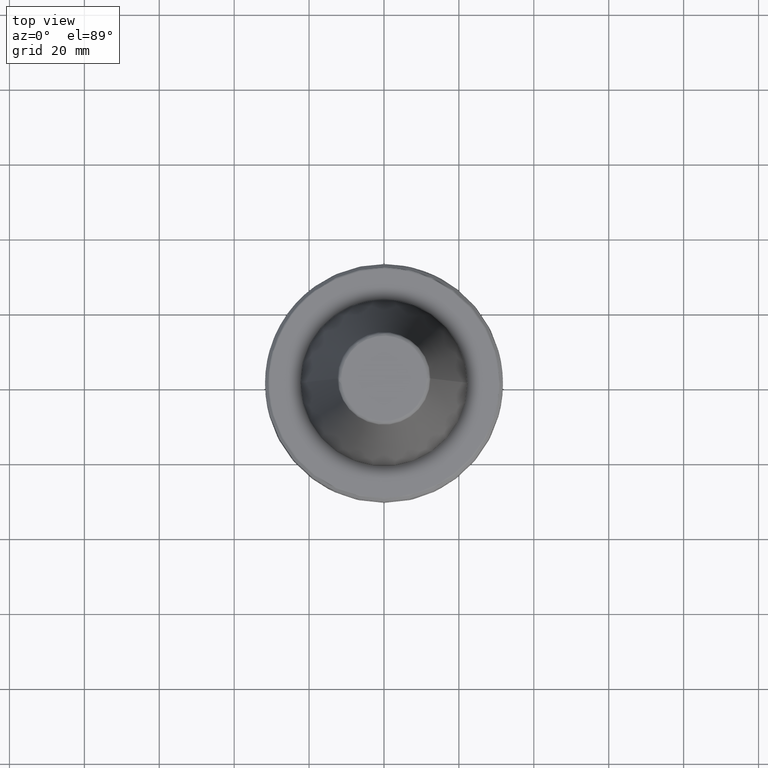
[diagram: clean part render]
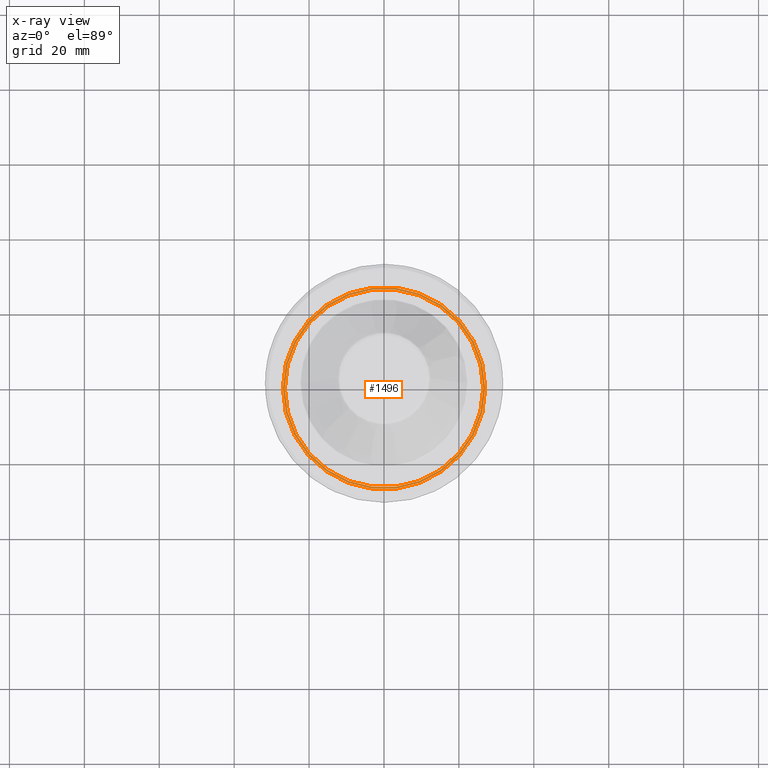
[diagram: x-ray — body ghosted, one internal face saturated and labeled with its STEP entity id]
A machine part, top view, then the same camera in x-ray: the body is ghosted and one INTERNAL B-rep face — a face not visible from any outside direction — is saturated and labeled: STEP entity #1496.
In plain terms, the highlighted planar face has unit normal (0, 0, 1).
Its self-contained STEP definition (entity closure, byte-faithful):
#104 = EDGE_CURVE ( 'NONE', #2787, #2633, #1149, .T. ) ;
#126 = CARTESIAN_POINT ( 'NONE',  ( 0.0000000000000000000, 0.0000000000000000000, -84.49999999999998600 ) ) ;
#161 = ORIENTED_EDGE ( 'NONE', *, *, #104, .F. ) ;
#218 = EDGE_CURVE ( 'NONE', #3044, #258, #980, .T. ) ;
#223 = ORIENTED_EDGE ( 'NONE', *, *, #218, .F. ) ;
#240 = ORIENTED_EDGE ( 'NONE', *, *, #1949, .F. ) ;
#258 = VERTEX_POINT ( 'NONE', #3192 ) ;
#362 = ORIENTED_EDGE ( 'NONE', *, *, #1793, .F. ) ;
#450 = AXIS2_PLACEMENT_3D ( 'NONE', #1848, #2854, #2677 ) ;
#569 = CARTESIAN_POINT ( 'NONE',  ( -27.00000000000000000, 3.306546357697853700E-015, -84.49999999999998600 ) ) ;
#980 = CIRCLE ( 'NONE', #2577, 26.50000000000000000 ) ;
#994 = CIRCLE ( 'NONE', #1615, 27.00000000000000000 ) ;
#1009 = CARTESIAN_POINT ( 'NONE',  ( 0.0000000000000000000, 0.0000000000000000000, -84.49999999999998600 ) ) ;
#1149 = CIRCLE ( 'NONE', #1383, 27.00000000000000000 ) ;
#1278 = DIRECTION ( 'NONE',  ( 1.000000000000000000, 0.0000000000000000000, 0.0000000000000000000 ) ) ;
#1383 = AXIS2_PLACEMENT_3D ( 'NONE', #3032, #1416, #1744 ) ;
#1416 = DIRECTION ( 'NONE',  ( 0.0000000000000000000, 0.0000000000000000000, 1.000000000000000000 ) ) ;
#1428 = DIRECTION ( 'NONE',  ( 0.0000000000000000000, 0.0000000000000000000, 1.000000000000000000 ) ) ;
#1462 = EDGE_LOOP ( 'NONE', ( #362, #161 ) ) ;
#1496 = ADVANCED_FACE ( 'NONE', ( #1827, #2492 ), #2900, .F. ) ;
#1546 = AXIS2_PLACEMENT_3D ( 'NONE', #1009, #2805, #1278 ) ;
#1556 = CARTESIAN_POINT ( 'NONE',  ( 27.00000000000000000, 0.0000000000000000000, -84.49999999999998600 ) ) ;
#1615 = AXIS2_PLACEMENT_3D ( 'NONE', #2940, #1428, #3194 ) ;
#1744 = DIRECTION ( 'NONE',  ( 1.000000000000000000, 0.0000000000000000000, 0.0000000000000000000 ) ) ;
#1755 = DIRECTION ( 'NONE',  ( 1.000000000000000000, 0.0000000000000000000, 0.0000000000000000000 ) ) ;
#1793 = EDGE_CURVE ( 'NONE', #2633, #2787, #994, .T. ) ;
#1827 = FACE_BOUND ( 'NONE', #3242, .T. ) ;
#1848 = CARTESIAN_POINT ( 'NONE',  ( 0.0000000000000000000, 27.00000000000000000, -84.49999999999998600 ) ) ;
#1949 = EDGE_CURVE ( 'NONE', #258, #3044, #2728, .T. ) ;
#2492 = FACE_OUTER_BOUND ( 'NONE', #1462, .T. ) ;
#2577 = AXIS2_PLACEMENT_3D ( 'NONE', #126, #3263, #1755 ) ;
#2633 = VERTEX_POINT ( 'NONE', #1556 ) ;
#2677 = DIRECTION ( 'NONE',  ( 1.000000000000000000, 0.0000000000000000000, -0.0000000000000000000 ) ) ;
#2728 = CIRCLE ( 'NONE', #1546, 26.50000000000000000 ) ;
#2729 = CARTESIAN_POINT ( 'NONE',  ( -26.50000000000000000, 3.245314017740485800E-015, -84.49999999999998600 ) ) ;
#2787 = VERTEX_POINT ( 'NONE', #569 ) ;
#2805 = DIRECTION ( 'NONE',  ( -0.0000000000000000000, -0.0000000000000000000, -1.000000000000000000 ) ) ;
#2854 = DIRECTION ( 'NONE',  ( 0.0000000000000000000, 0.0000000000000000000, 1.000000000000000000 ) ) ;
#2900 = PLANE ( 'NONE',  #450 ) ;
#2940 = CARTESIAN_POINT ( 'NONE',  ( 0.0000000000000000000, 0.0000000000000000000, -84.49999999999998600 ) ) ;
#3032 = CARTESIAN_POINT ( 'NONE',  ( 0.0000000000000000000, 0.0000000000000000000, -84.49999999999998600 ) ) ;
#3044 = VERTEX_POINT ( 'NONE', #2729 ) ;
#3192 = CARTESIAN_POINT ( 'NONE',  ( 26.50000000000000000, 0.0000000000000000000, -84.49999999999998600 ) ) ;
#3194 = DIRECTION ( 'NONE',  ( 1.000000000000000000, 0.0000000000000000000, 0.0000000000000000000 ) ) ;
#3242 = EDGE_LOOP ( 'NONE', ( #240, #223 ) ) ;
#3263 = DIRECTION ( 'NONE',  ( -0.0000000000000000000, -0.0000000000000000000, -1.000000000000000000 ) ) ;